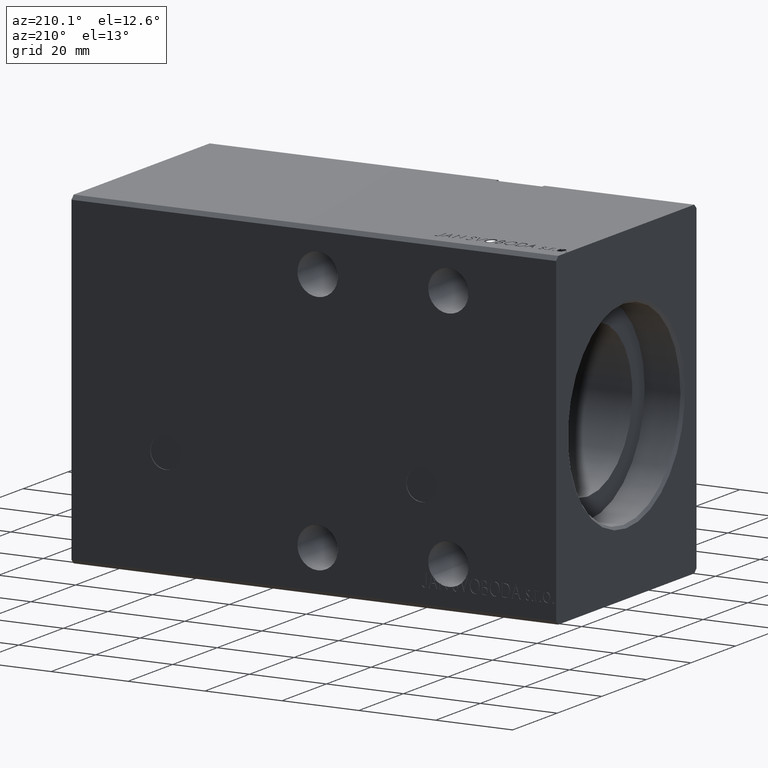
[diagram: clean part render]
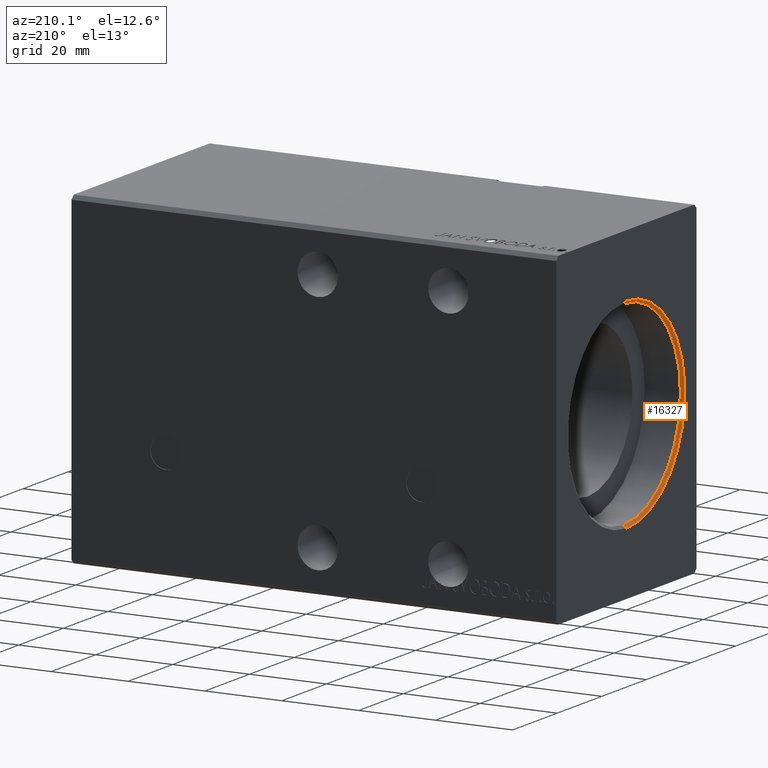
[diagram: same view with one face highlighted and labeled with its STEP entity id]
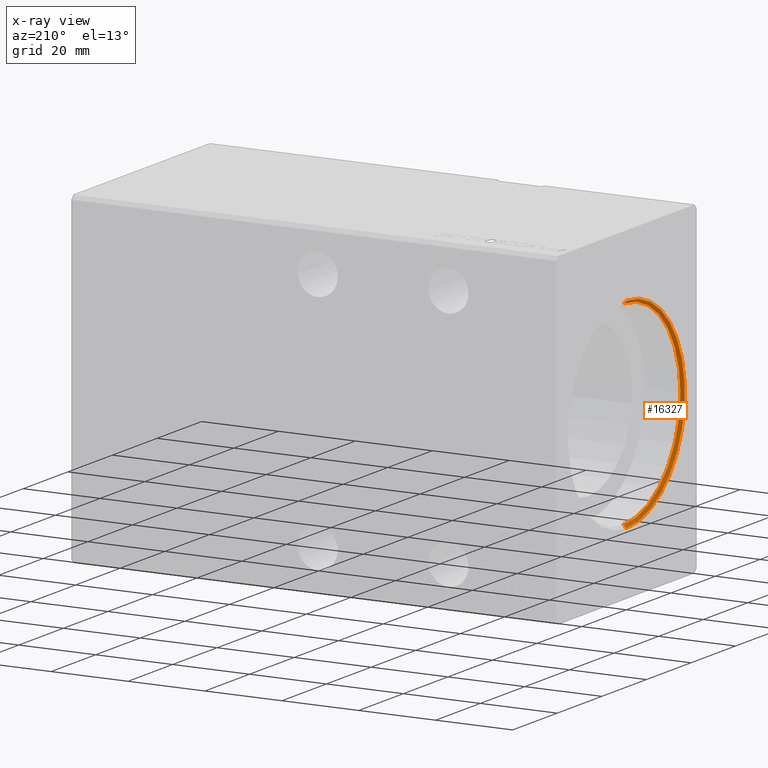
[diagram: x-ray of the same camera — body ghosted, the highlighted face saturated]
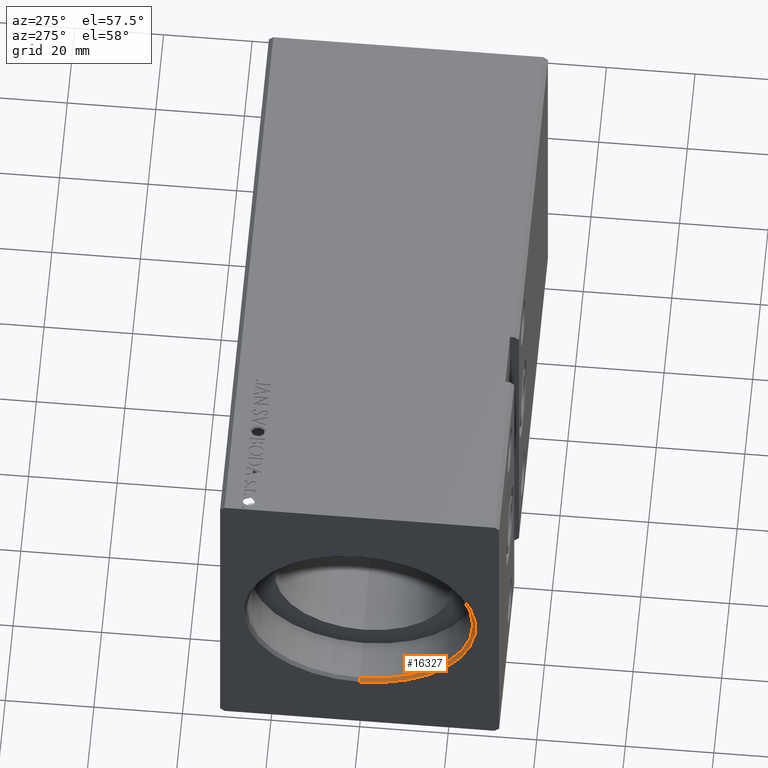
[diagram: same view with one face highlighted and labeled with its STEP entity id]
A machine part, auxiliary view. The second image highlights one B-rep face of the part: STEP entity #16327.
The next image is the same camera in x-ray: the body ghosted, the highlighted face saturated — about 0% of this face is hidden behind the body in this view.
A second angle (auxiliary view) of the same face is appended — the face is thin or edge-on in the first view.
In plain terms, the highlighted conical surface has half-angle 45 deg.
Its self-contained STEP definition (entity closure, byte-faithful):
#622 = AXIS2_PLACEMENT_3D ( 'NONE', #10475, #39247, #39463 ) ;
#2035 = LINE ( 'NONE', #14578, #36050 ) ;
#2243 = DIRECTION ( 'NONE',  ( -0.7071067811865422437, 8.659560562354998186E-17, -0.7071067811865527908 ) ) ;
#5450 = DIRECTION ( 'NONE',  ( 1.000000000000000000, 0.000000000000000000, 0.000000000000000000 ) ) ;
#7609 = EDGE_CURVE ( 'NONE', #22763, #17643, #11051, .T. ) ;
#8934 = CARTESIAN_POINT ( 'NONE',  ( 0.000000000000000000, 0.000000000000000000, 0.000000000000000000 ) ) ;
#10475 = CARTESIAN_POINT ( 'NONE',  ( 0.6999999999999922951, 0.000000000000000000, 0.000000000000000000 ) ) ;
#11051 = CIRCLE ( 'NONE', #39267, 26.20000000000000284 ) ;
#11671 = VECTOR ( 'NONE', #14433, 1000.000000000000114 ) ;
#12472 = CONICAL_SURFACE ( 'NONE', #35450, 25.50000000000000000, 0.7853981633974557175 ) ;
#14433 = DIRECTION ( 'NONE',  ( -0.7071067811865422437, 0.000000000000000000, 0.7071067811865527908 ) ) ;
#14578 = CARTESIAN_POINT ( 'NONE',  ( 0.6999999999999922951, 3.122849337825750222E-15, -25.50000000000000000 ) ) ;
#16327 = ADVANCED_FACE ( 'NONE', ( #38754 ), #12472, .F. ) ;
#16546 = DIRECTION ( 'NONE',  ( 0.000000000000000000, 0.000000000000000000, 1.000000000000000000 ) ) ;
#17643 = VERTEX_POINT ( 'NONE', #19980 ) ;
#19420 = CARTESIAN_POINT ( 'NONE',  ( 0.6999999999999922951, 0.000000000000000000, 0.000000000000000000 ) ) ;
#19950 = CARTESIAN_POINT ( 'NONE',  ( 0.6999999999999922951, 3.122849337825750222E-15, -25.50000000000000000 ) ) ;
#19980 = CARTESIAN_POINT ( 'NONE',  ( 0.000000000000000000, 3.208574613766065694E-15, -26.20000000000000284 ) ) ;
#20309 = CIRCLE ( 'NONE', #622, 25.50000000000000000 ) ;
#20400 = ORIENTED_EDGE ( 'NONE', *, *, #7609, .F. ) ;
#20404 = CARTESIAN_POINT ( 'NONE',  ( 0.6999999999999922951, 0.000000000000000000, 25.50000000000000000 ) ) ;
#22763 = VERTEX_POINT ( 'NONE', #33089 ) ;
#23316 = EDGE_CURVE ( 'NONE', #26604, #22763, #23709, .T. ) ;
#23709 = LINE ( 'NONE', #20404, #11671 ) ;
#26604 = VERTEX_POINT ( 'NONE', #34436 ) ;
#26799 = EDGE_LOOP ( 'NONE', ( #36793, #39835, #20400, #31091 ) ) ;
#26980 = EDGE_CURVE ( 'NONE', #34788, #17643, #2035, .T. ) ;
#28060 = DIRECTION ( 'NONE',  ( 0.000000000000000000, 0.000000000000000000, -1.000000000000000000 ) ) ;
#29213 = EDGE_CURVE ( 'NONE', #34788, #26604, #20309, .T. ) ;
#31091 = ORIENTED_EDGE ( 'NONE', *, *, #23316, .F. ) ;
#31964 = DIRECTION ( 'NONE',  ( -1.000000000000000000, 0.000000000000000000, 0.000000000000000000 ) ) ;
#33089 = CARTESIAN_POINT ( 'NONE',  ( 0.000000000000000000, 0.000000000000000000, 26.20000000000000284 ) ) ;
#34436 = CARTESIAN_POINT ( 'NONE',  ( 0.6999999999999922951, 0.000000000000000000, 25.50000000000000000 ) ) ;
#34788 = VERTEX_POINT ( 'NONE', #19950 ) ;
#35450 = AXIS2_PLACEMENT_3D ( 'NONE', #19420, #31964, #16546 ) ;
#36050 = VECTOR ( 'NONE', #2243, 1000.000000000000114 ) ;
#36793 = ORIENTED_EDGE ( 'NONE', *, *, #29213, .F. ) ;
#38754 = FACE_OUTER_BOUND ( 'NONE', #26799, .T. ) ;
#39247 = DIRECTION ( 'NONE',  ( -1.000000000000000000, 0.000000000000000000, 0.000000000000000000 ) ) ;
#39267 = AXIS2_PLACEMENT_3D ( 'NONE', #8934, #5450, #28060 ) ;
#39463 = DIRECTION ( 'NONE',  ( 0.000000000000000000, 0.000000000000000000, -1.000000000000000000 ) ) ;
#39835 = ORIENTED_EDGE ( 'NONE', *, *, #26980, .T. ) ;